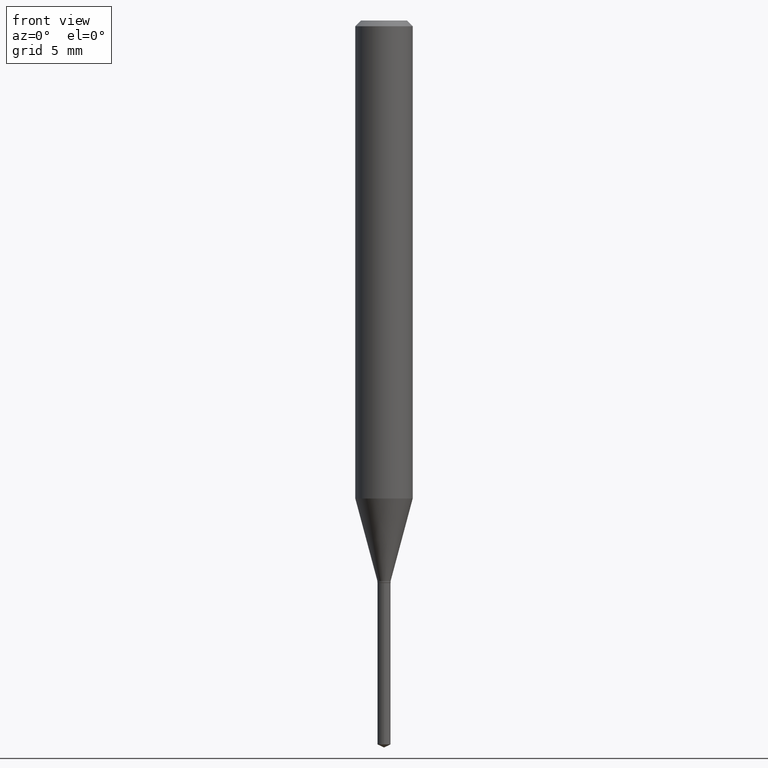
[diagram: clean part render]
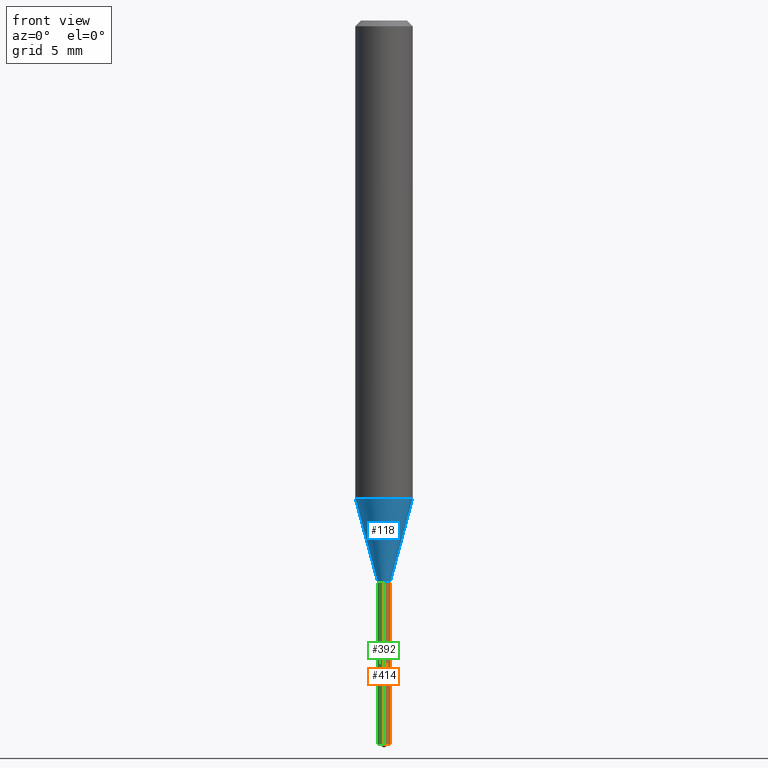
[diagram: same view with three faces highlighted in distinct colors, each labeled with its STEP entity id]
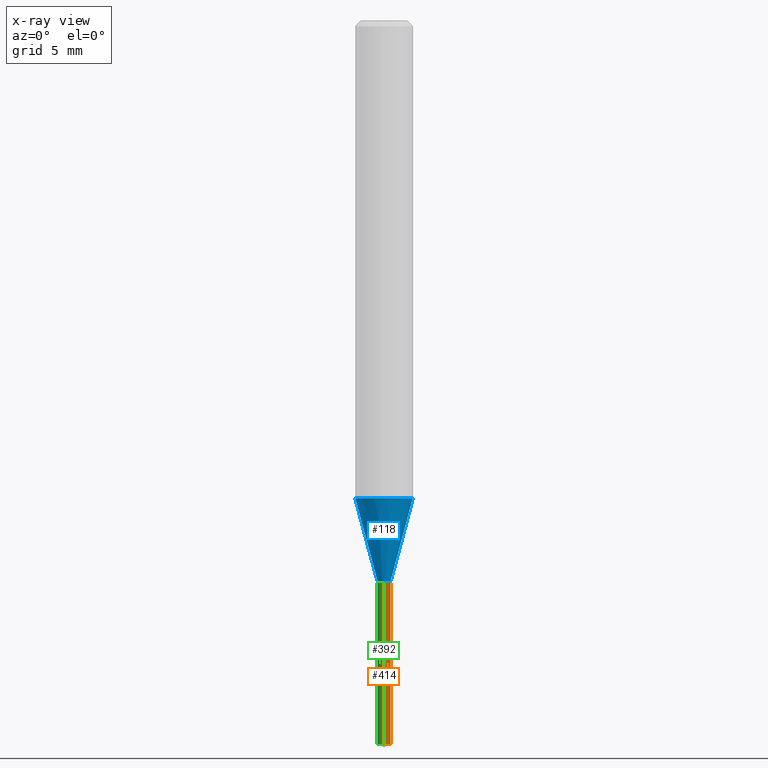
[diagram: x-ray of the same camera — body ghosted, the three highlighted faces saturated]
A machine part, front view with three faces highlighted in distinct colors.
The next image is the same camera in x-ray (body ghosted, the three faces saturated) — at least one of them is partly hidden behind the body in this view.
Their STEP definitions:

[orange] entity #414 — the highlighted cylindrical surface (edge-blend (fillet) strip) has radius 0.3454 mm, axis along (-0, 0, 1).
#1 = VERTEX_POINT ( 'NONE', #390 ) ;
#8 = ORIENTED_EDGE ( 'NONE', *, *, #334, .F. ) ;
#14 = LINE ( 'NONE', #356, #463 ) ;
#23 = DIRECTION ( 'NONE',  ( -2.436895557736890355E-29, 3.503758718580032420E-15, 1.000000000000000000 ) ) ;
#90 = CARTESIAN_POINT ( 'NONE',  ( 3.640308713383532375E-29, -5.205542270312043558E-15, -1.489758215849092071 ) ) ;
#112 = CARTESIAN_POINT ( 'NONE',  ( 2.830630143159295633E-29, -4.041389649710940900E-15, -1.157499999999999973 ) ) ;
#129 = CARTESIAN_POINT ( 'NONE',  ( -9.496829241649684687E-17, -0.01360000000000521035, -1.489758215849092071 ) ) ;
#131 = AXIS2_PLACEMENT_3D ( 'NONE', #438, #185, #323 ) ;
#136 = DIRECTION ( 'NONE',  ( -6.982962677686266711E-15, -1.000000000000000000, 0.000000000000000000 ) ) ;
#178 = VERTEX_POINT ( 'NONE', #129 ) ;
#185 = DIRECTION ( 'NONE',  ( -2.436895557736890355E-29, 3.503758718580032420E-15, 1.000000000000000000 ) ) ;
#195 = AXIS2_PLACEMENT_3D ( 'NONE', #90, #458, #136 ) ;
#220 = DIRECTION ( 'NONE',  ( -6.982962677686266711E-15, -1.000000000000000000, 0.000000000000000000 ) ) ;
#241 = CARTESIAN_POINT ( 'NONE',  ( -9.496829241650489572E-17, -0.01360000000000404115, -1.157499999999999973 ) ) ;
#252 = CYLINDRICAL_SURFACE ( 'NONE', #439, 0.01360000000000000098 ) ;
#258 = ORIENTED_EDGE ( 'NONE', *, *, #410, .F. ) ;
#267 = VECTOR ( 'NONE', #466, 39.37007874015748143 ) ;
#278 = LINE ( 'NONE', #313, #267 ) ;
#279 = VERTEX_POINT ( 'NONE', #241 ) ;
#295 = CIRCLE ( 'NONE', #131, 0.01359999999999999924 ) ;
#309 = DIRECTION ( 'NONE',  ( -2.436895557736890074E-29, 3.503758718580032420E-15, 1.000000000000000000 ) ) ;
#313 = CARTESIAN_POINT ( 'NONE',  ( -9.496829241650492037E-17, -0.01360000000000404288, -1.157499999999999973 ) ) ;
#323 = DIRECTION ( 'NONE',  ( -6.982962677686265922E-15, -1.000000000000000000, 0.000000000000000000 ) ) ;
#327 = CARTESIAN_POINT ( 'NONE',  ( 9.663381206341009239E-17, 0.01359999999999595734, -1.157499999999999973 ) ) ;
#334 = EDGE_CURVE ( 'NONE', #178, #279, #278, .T. ) ;
#356 = CARTESIAN_POINT ( 'NONE',  ( 9.663381206340193261E-17, 0.01359999999999595907, -1.157499999999999973 ) ) ;
#360 = FACE_OUTER_BOUND ( 'NONE', #467, .T. ) ;
#385 = CIRCLE ( 'NONE', #195, 0.01360000000000000271 ) ;
#390 = CARTESIAN_POINT ( 'NONE',  ( 9.663381206341004308E-17, 0.01359999999999479854, -1.489758215849092071 ) ) ;
#396 = ORIENTED_EDGE ( 'NONE', *, *, #441, .T. ) ;
#401 = ORIENTED_EDGE ( 'NONE', *, *, #456, .T. ) ;
#410 = EDGE_CURVE ( 'NONE', #279, #419, #295, .T. ) ;
#414 = ADVANCED_FACE ( 'NONE', ( #360 ), #252, .T. ) ;
#419 = VERTEX_POINT ( 'NONE', #327 ) ;
#438 = CARTESIAN_POINT ( 'NONE',  ( 2.830630143159295633E-29, -4.041389649710940900E-15, -1.157499999999999973 ) ) ;
#439 = AXIS2_PLACEMENT_3D ( 'NONE', #112, #23, #220 ) ;
#441 = EDGE_CURVE ( 'NONE', #178, #1, #385, .T. ) ;
#456 = EDGE_CURVE ( 'NONE', #1, #419, #14, .T. ) ;
#458 = DIRECTION ( 'NONE',  ( -2.436895557736890355E-29, 3.503758718580032420E-15, 1.000000000000000000 ) ) ;
#463 = VECTOR ( 'NONE', #309, 39.37007874015748143 ) ;
#466 = DIRECTION ( 'NONE',  ( -2.436895557736890074E-29, 3.503758718580032420E-15, 1.000000000000000000 ) ) ;
#467 = EDGE_LOOP ( 'NONE', ( #396, #401, #258, #8 ) ) ;

[blue] entity #118 — the highlighted conical surface has half-angle 15 deg.
#7 = AXIS2_PLACEMENT_3D ( 'NONE', #12, #381, #354 ) ;
#9 = DIRECTION ( 'NONE',  ( 0.2588190451025213501, 1.565188264969621968E-15, 0.9659258262890682012 ) ) ;
#12 = CARTESIAN_POINT ( 'NONE',  ( 2.820603721053936118E-29, -4.027074576221683782E-15, -1.153399999999999981 ) ) ;
#15 = ORIENTED_EDGE ( 'NONE', *, *, #63, .F. ) ;
#19 = CIRCLE ( 'NONE', #200, 0.05905000000000011628 ) ;
#38 = EDGE_CURVE ( 'NONE', #453, #226, #403, .T. ) ;
#50 = EDGE_LOOP ( 'NONE', ( #55, #88, #340, #15 ) ) ;
#55 = ORIENTED_EDGE ( 'NONE', *, *, #99, .F. ) ;
#63 = EDGE_CURVE ( 'NONE', #206, #175, #19, .T. ) ;
#85 = CARTESIAN_POINT ( 'NONE',  ( 0.05905000000000013016, -3.847187489990594965E-15, -0.9837782907959944367 ) ) ;
#88 = ORIENTED_EDGE ( 'NONE', *, *, #38, .T. ) ;
#99 = EDGE_CURVE ( 'NONE', #453, #206, #216, .T. ) ;
#118 = ADVANCED_FACE ( 'NONE', ( #454 ), #119, .T. ) ;
#119 = CONICAL_SURFACE ( 'NONE', #189, 0.01359999999999999924, 0.2617993877991500740 ) ;
#123 = CARTESIAN_POINT ( 'NONE',  ( -0.05905000000000013016, -3.015268058406879369E-15, -0.9837782907959944367 ) ) ;
#172 = LINE ( 'NONE', #207, #394 ) ;
#175 = VERTEX_POINT ( 'NONE', #85 ) ;
#182 = DIRECTION ( 'NONE',  ( -2.445468806185136597E-29, 3.491481338843145583E-15, 1.000000000000000000 ) ) ;
#186 = CARTESIAN_POINT ( 'NONE',  ( 2.405799122343734810E-29, -3.434843543873219650E-15, -0.9837782907959944367 ) ) ;
#189 = AXIS2_PLACEMENT_3D ( 'NONE', #408, #483, #477 ) ;
#200 = AXIS2_PLACEMENT_3D ( 'NONE', #186, #182, #326 ) ;
#206 = VERTEX_POINT ( 'NONE', #123 ) ;
#207 = CARTESIAN_POINT ( 'NONE',  ( 0.01359999999999999924, -4.122042868638216732E-15, -1.153399999999999981 ) ) ;
#216 = LINE ( 'NONE', #362, #375 ) ;
#226 = VERTEX_POINT ( 'NONE', #257 ) ;
#257 = CARTESIAN_POINT ( 'NONE',  ( 0.01359999999999999924, -4.122042868638216732E-15, -1.153399999999999981 ) ) ;
#320 = EDGE_CURVE ( 'NONE', #226, #175, #172, .T. ) ;
#326 = DIRECTION ( 'NONE',  ( 1.000000000000000000, -6.982962677686266711E-15, 0.000000000000000000 ) ) ;
#331 = DIRECTION ( 'NONE',  ( -0.2588190451025213501, 5.211531920934551042E-15, 0.9659258262890682012 ) ) ;
#340 = ORIENTED_EDGE ( 'NONE', *, *, #320, .T. ) ;
#354 = DIRECTION ( 'NONE',  ( 1.000000000000000000, -6.982962677686275388E-15, 0.000000000000000000 ) ) ;
#362 = CARTESIAN_POINT ( 'NONE',  ( -0.01359999999999999924, -3.930440764158309756E-15, -1.153399999999999981 ) ) ;
#375 = VECTOR ( 'NONE', #331, 39.37007874015747433 ) ;
#381 = DIRECTION ( 'NONE',  ( -2.445468806185136597E-29, 3.491481338843145583E-15, 1.000000000000000000 ) ) ;
#394 = VECTOR ( 'NONE', #9, 39.37007874015747433 ) ;
#403 = CIRCLE ( 'NONE', #7, 0.01359999999999999924 ) ;
#408 = CARTESIAN_POINT ( 'NONE',  ( 2.820603721053936118E-29, -4.027074576221683782E-15, -1.153399999999999981 ) ) ;
#453 = VERTEX_POINT ( 'NONE', #464 ) ;
#454 = FACE_OUTER_BOUND ( 'NONE', #50, .T. ) ;
#464 = CARTESIAN_POINT ( 'NONE',  ( -0.01359999999999999924, -3.936725430568227169E-15, -1.153399999999999981 ) ) ;
#477 = DIRECTION ( 'NONE',  ( 1.000000000000000000, -6.982962677686275388E-15, 0.000000000000000000 ) ) ;
#483 = DIRECTION ( 'NONE',  ( -2.445468806185136597E-29, 3.491481338843145583E-15, 1.000000000000000000 ) ) ;

[green] entity #392 — the highlighted cylindrical surface (edge-blend (fillet) strip) has radius 0.3454 mm, axis along (-0, 0, 1).
#1 = VERTEX_POINT ( 'NONE', #390 ) ;
#14 = LINE ( 'NONE', #356, #463 ) ;
#41 = AXIS2_PLACEMENT_3D ( 'NONE', #214, #288, #400 ) ;
#66 = AXIS2_PLACEMENT_3D ( 'NONE', #89, #198, #415 ) ;
#76 = DIRECTION ( 'NONE',  ( -2.436895557736890355E-29, 3.503758718580032420E-15, 1.000000000000000000 ) ) ;
#89 = CARTESIAN_POINT ( 'NONE',  ( 3.640308713383532375E-29, -5.205542270312043558E-15, -1.489758215849092071 ) ) ;
#96 = ORIENTED_EDGE ( 'NONE', *, *, #203, .T. ) ;
#128 = ORIENTED_EDGE ( 'NONE', *, *, #456, .F. ) ;
#129 = CARTESIAN_POINT ( 'NONE',  ( -9.496829241649684687E-17, -0.01360000000000521035, -1.489758215849092071 ) ) ;
#143 = FACE_OUTER_BOUND ( 'NONE', #318, .T. ) ;
#170 = AXIS2_PLACEMENT_3D ( 'NONE', #402, #76, #290 ) ;
#171 = ORIENTED_EDGE ( 'NONE', *, *, #395, .F. ) ;
#178 = VERTEX_POINT ( 'NONE', #129 ) ;
#198 = DIRECTION ( 'NONE',  ( -2.436895557736890355E-29, 3.503758718580032420E-15, 1.000000000000000000 ) ) ;
#203 = EDGE_CURVE ( 'NONE', #1, #178, #301, .T. ) ;
#214 = CARTESIAN_POINT ( 'NONE',  ( 2.830630143159295633E-29, -4.041389649710940900E-15, -1.157499999999999973 ) ) ;
#227 = ORIENTED_EDGE ( 'NONE', *, *, #334, .T. ) ;
#241 = CARTESIAN_POINT ( 'NONE',  ( -9.496829241650489572E-17, -0.01360000000000404115, -1.157499999999999973 ) ) ;
#267 = VECTOR ( 'NONE', #466, 39.37007874015748143 ) ;
#278 = LINE ( 'NONE', #313, #267 ) ;
#279 = VERTEX_POINT ( 'NONE', #241 ) ;
#288 = DIRECTION ( 'NONE',  ( -2.436895557736890355E-29, 3.503758718580032420E-15, 1.000000000000000000 ) ) ;
#290 = DIRECTION ( 'NONE',  ( -6.982962677686266711E-15, -1.000000000000000000, 0.000000000000000000 ) ) ;
#301 = CIRCLE ( 'NONE', #66, 0.01360000000000000271 ) ;
#309 = DIRECTION ( 'NONE',  ( -2.436895557736890074E-29, 3.503758718580032420E-15, 1.000000000000000000 ) ) ;
#313 = CARTESIAN_POINT ( 'NONE',  ( -9.496829241650492037E-17, -0.01360000000000404288, -1.157499999999999973 ) ) ;
#318 = EDGE_LOOP ( 'NONE', ( #128, #96, #227, #171 ) ) ;
#327 = CARTESIAN_POINT ( 'NONE',  ( 9.663381206341009239E-17, 0.01359999999999595734, -1.157499999999999973 ) ) ;
#334 = EDGE_CURVE ( 'NONE', #178, #279, #278, .T. ) ;
#356 = CARTESIAN_POINT ( 'NONE',  ( 9.663381206340193261E-17, 0.01359999999999595907, -1.157499999999999973 ) ) ;
#358 = CYLINDRICAL_SURFACE ( 'NONE', #170, 0.01360000000000000098 ) ;
#376 = CIRCLE ( 'NONE', #41, 0.01359999999999999924 ) ;
#390 = CARTESIAN_POINT ( 'NONE',  ( 9.663381206341004308E-17, 0.01359999999999479854, -1.489758215849092071 ) ) ;
#392 = ADVANCED_FACE ( 'NONE', ( #143 ), #358, .T. ) ;
#395 = EDGE_CURVE ( 'NONE', #419, #279, #376, .T. ) ;
#400 = DIRECTION ( 'NONE',  ( -6.982962677686265922E-15, -1.000000000000000000, 0.000000000000000000 ) ) ;
#402 = CARTESIAN_POINT ( 'NONE',  ( 2.830630143159295633E-29, -4.041389649710940900E-15, -1.157499999999999973 ) ) ;
#415 = DIRECTION ( 'NONE',  ( -6.982962677686266711E-15, -1.000000000000000000, 0.000000000000000000 ) ) ;
#419 = VERTEX_POINT ( 'NONE', #327 ) ;
#456 = EDGE_CURVE ( 'NONE', #1, #419, #14, .T. ) ;
#463 = VECTOR ( 'NONE', #309, 39.37007874015748143 ) ;
#466 = DIRECTION ( 'NONE',  ( -2.436895557736890074E-29, 3.503758718580032420E-15, 1.000000000000000000 ) ) ;